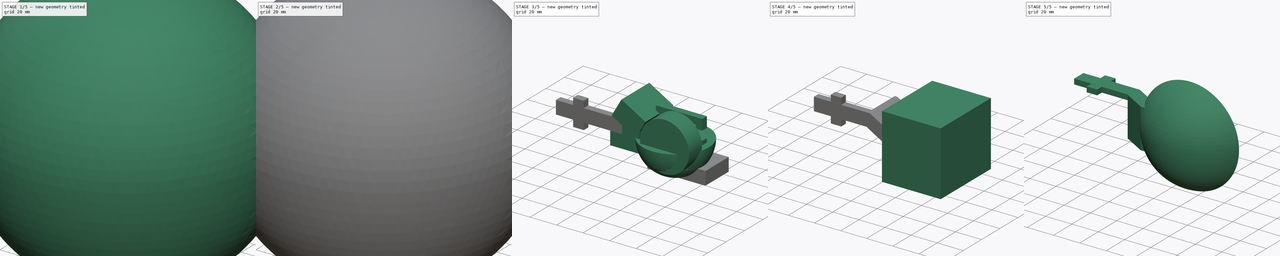
[diagram: build sequence overview — one tinted view per stage of 5, left to right]
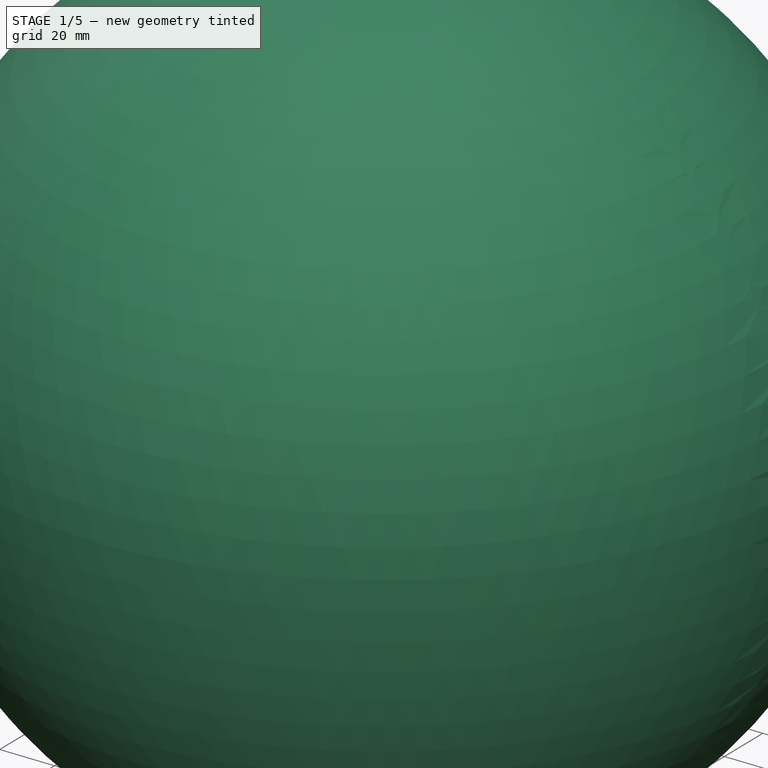
[diagram: stage 1 of 5 — iso view after this stage's code; geometry added in this stage tinted green]
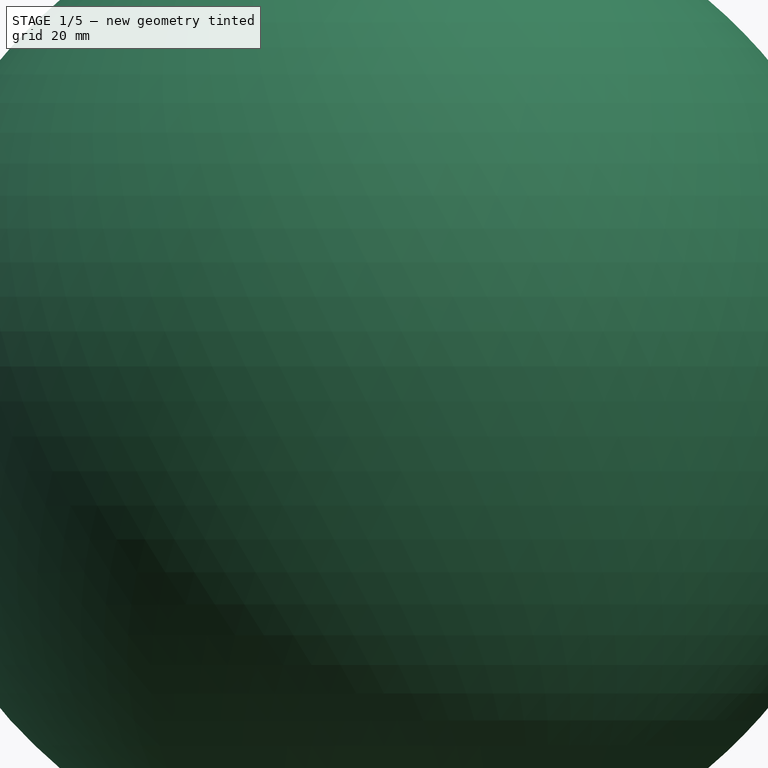
[diagram: stage 1 of 5 — front view after this stage's code; geometry added in this stage tinted green]
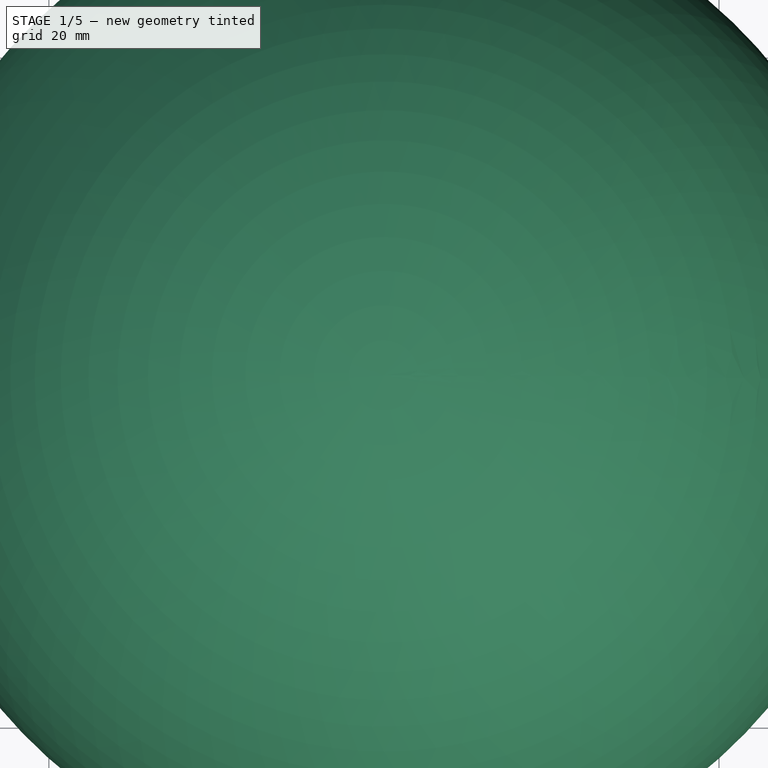
[diagram: stage 1 of 5 — top view after this stage's code; geometry added in this stage tinted green]
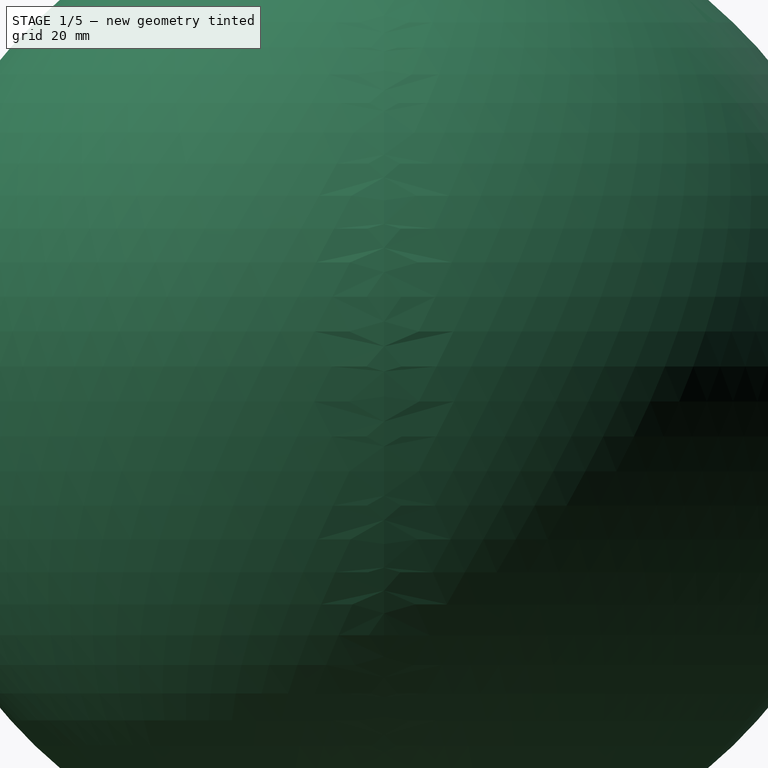
[diagram: stage 1 of 5 — right view after this stage's code; geometry added in this stage tinted green]
FCSTD DOCUMENT  (FreeCAD 0.20R29410 (Git))
Label: base_arduino
License: All rights reserved
LicenseURL: http://en.wikipedia.org/wiki/All_rights_reserved
objects: Part::Cut×18, Part::Box×16, Part::Extrusion×7, Sketcher::SketchObject×4, Part::MultiFuse×4, Part::Sphere×3, Part::Fuse×3, Part::Feature×3
note: 58 computed .brp shape members not serialized (recipe doc carries the construction recipe); baked Part::Feature solids carry a one-line shape summary decoded from their .brp

FEATURE [Sketcher::SketchObject] Sketch003
  FullyConstrained = true
  MapMode = 2
  sketch-geometry (6):
    g0: LineSegment StartX=0 StartY=0 StartZ=0 EndX=0 EndY=-5 EndZ=0
    g1: LineSegment StartX=0 StartY=-5 StartZ=0 EndX=50 EndY=-5 EndZ=0
    g2: LineSegment StartX=50 StartY=-5 StartZ=0 EndX=50 EndY=15 EndZ=0
    g3: LineSegment StartX=50 StartY=15 StartZ=0 EndX=45 EndY=15 EndZ=0
    g4: LineSegment StartX=45 StartY=15 StartZ=0 EndX=45 EndY=0 EndZ=0
    g5: LineSegment StartX=45 StartY=0 StartZ=0 EndX=0 EndY=0 EndZ=0
  constraints (17):
    c: Coincident(g-1,g0)
    c: PointOnObject(g0,g-2)
    c: Coincident(g0,g1)
    c: Horizontal(g1)
    c: Coincident(g1,g2)
    c: Vertical(g2)
    c: Coincident(g2,g3)
    c: Horizontal(g3)
    c: Coincident(g3,g4)
    c: PointOnObject(g4,g-1)
    c: Vertical(g4)
    c: Coincident(g4,g5)
    c: Coincident(g5,g0)
    c: Distance(g1) = 50
    c: Distance(g0) = 5
    c: Distance(g3) = 5
    c: Distance(g4) = 15
FEATURE [Part::Extrusion] Extrude007
  Base = -> Sketch003
  Dir = (0,0,1)
  DirMode = 2
  FaceMakerClass = Part::FaceMakerBullseye
  LengthFwd = 20
  LengthRev = 0
  Solid = true
  Symmetric = false
FEATURE [Part::Sphere] Sphere001  label="Esfera001"
  Angle1 = -90
  Angle2 = 90
  Angle3 = 360
  AttacherType = Attacher::AttachEngine3D
  Radius = 150
FEATURE [Part::Sphere] Sphere002  label="Esfera002"
  Angle1 = -90
  Angle2 = 90
  Angle3 = 360
  AttacherType = Attacher::AttachEngine3D
  Radius = 25
FEATURE [Part::Feature] circle1173
  Placement = pos=(80.8508,-13.1887,0) rot=(0,0,1;0rad)
  shape: bbox 0.8152 x 0.9368 x 1.995e-06 mm, 0 faces, 0 solids (baked)
FEATURE [Part::Extrusion] Extrude006
  Base = -> circle1173
  Dir = (0,0,1)
  DirMode = 2
  FaceMakerClass = Part::FaceMakerBullseye
  LengthFwd = 2
  LengthRev = 0
  Placement = pos=(22.5,0,0) rot=(0,0,1;0rad)
  Solid = true
  Symmetric = false
FEATURE [Part::Feature] circle1174
  Placement = pos=(80.8508,-10.0656,0) rot=(0,0,1;0rad)
  shape: bbox 0.8152 x 0.9368 x 1.995e-06 mm, 0 faces, 0 solids (baked)
FEATURE [Part::Extrusion] Extrude005
  Base = -> circle1174
  Dir = (0,0,1)
  DirMode = 2
  FaceMakerClass = Part::FaceMakerBullseye
  LengthFwd = 2
  LengthRev = 0
  Placement = pos=(22.5,0,0) rot=(0,0,1;0rad)
  Solid = true
  Symmetric = false
FEATURE [Part::Feature] path284
  shape: bbox 16.5 x 34.62 x 2e-07 mm, 0 faces, 0 solids (baked)
FEATURE [Part::Extrusion] Extrude004
  Base = -> path284
  Dir = (0,0,1)
  DirMode = 0
  FaceMakerClass = Part::FaceMakerBullseye
  LengthFwd = 1
  LengthRev = 0
  Solid = true
  Symmetric = false
FEATURE [Part::Fuse] Fusion002
  Base = -> Extrude004
  Tool = -> Extrude005
FEATURE [Part::Fuse] Fusion003
  Base = -> Fusion002
  Placement = pos=(46,2.9e-14,98) rot=(0.57735,0.57735,-0.57735;2.0944rad)
  Tool = -> Extrude006
FEATURE [Part::Cut] Cut005  label="agarre"
  Base = -> Extrude007
  Placement = pos=(-80,-10,20) rot=(0,0,1;0rad)
  Tool = -> Fusion003
FEATURE [Part::Box] Box015  label="Cubo015"
  AttacherType = Attacher::AttachEngine3D
  Height = 10
  Length = 44
  Placement = pos=(-18,-5,1) rot=(0,0,1;0rad)
  Width = 25
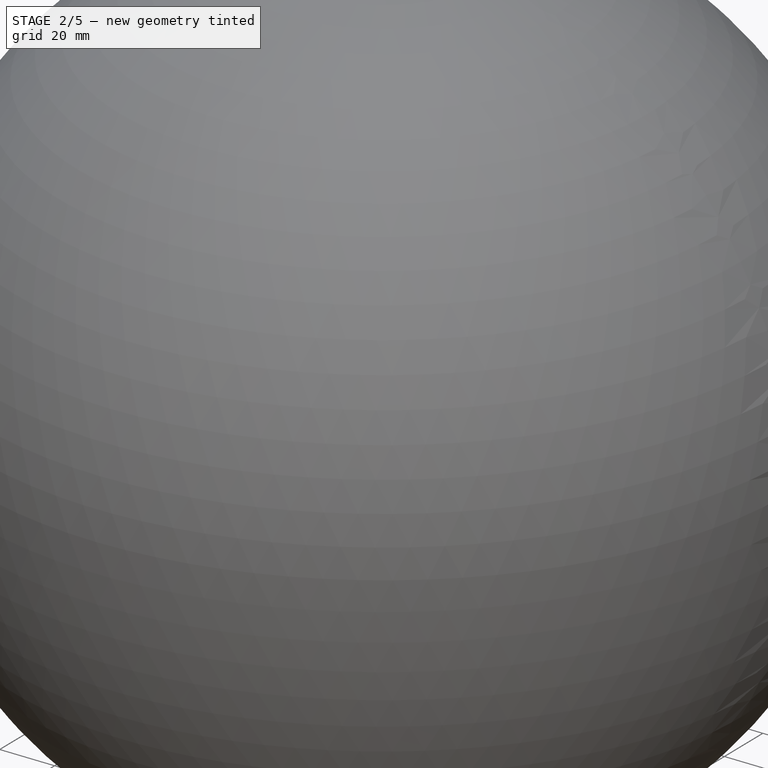
[diagram: stage 2 of 5 — iso view after this stage's code; geometry added in this stage tinted green]
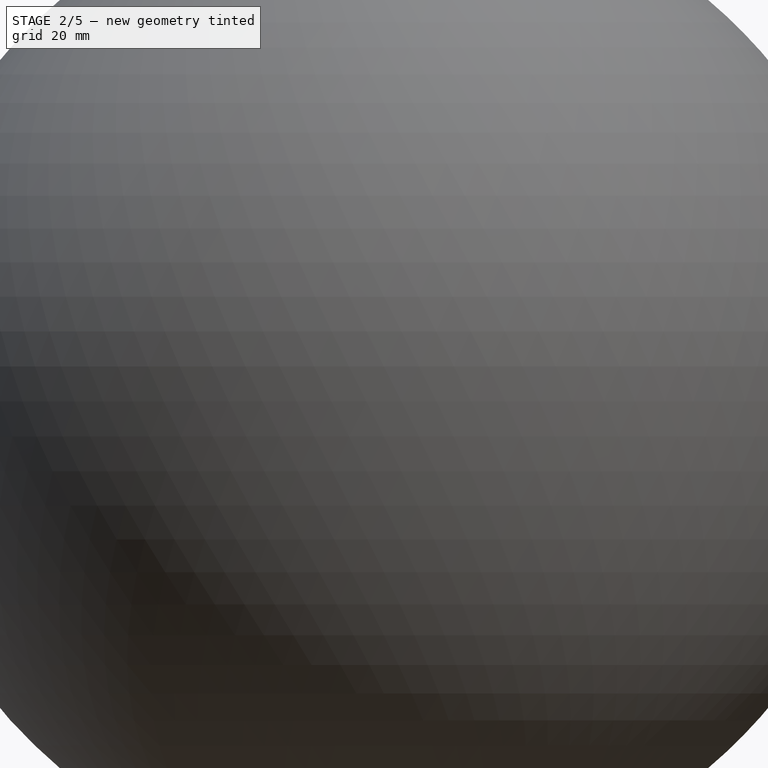
[diagram: stage 2 of 5 — front view after this stage's code; geometry added in this stage tinted green]
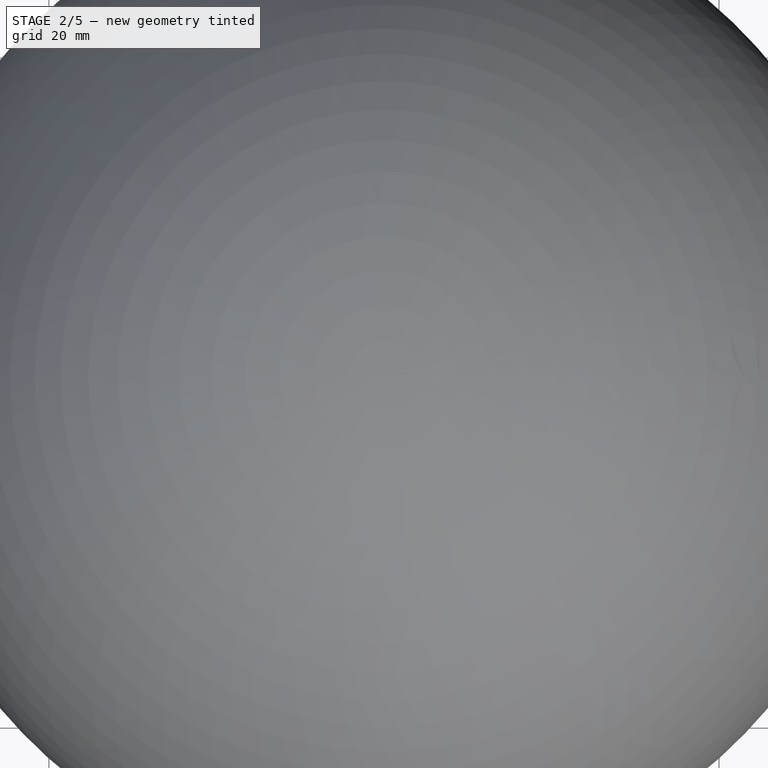
[diagram: stage 2 of 5 — top view after this stage's code; geometry added in this stage tinted green]
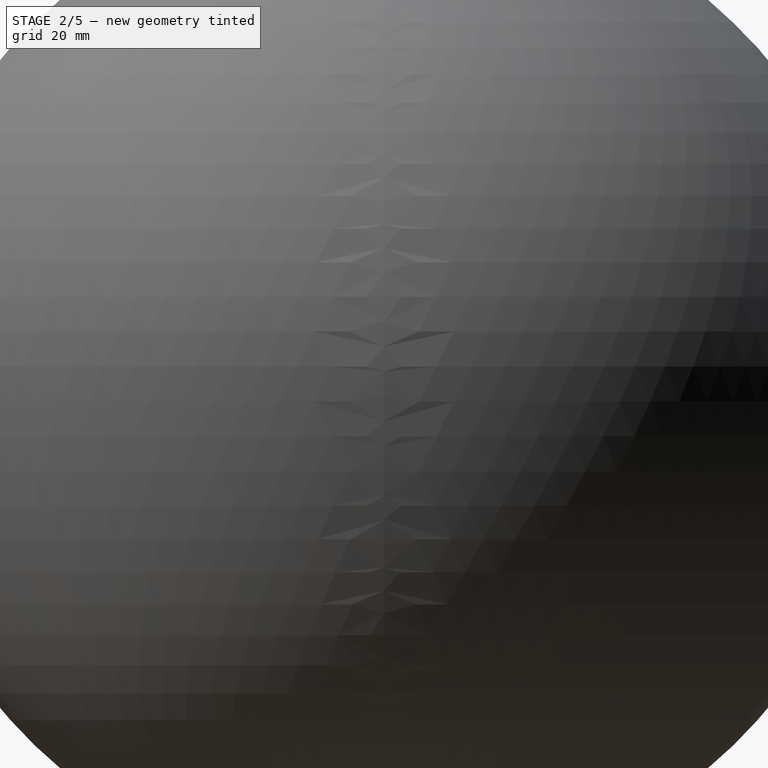
[diagram: stage 2 of 5 — right view after this stage's code; geometry added in this stage tinted green]
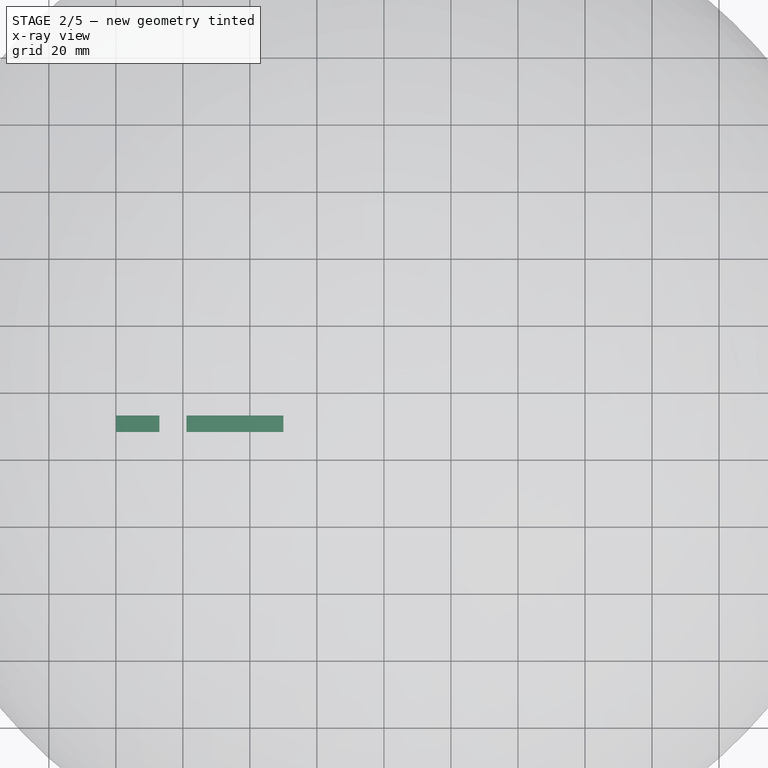
[diagram: stage 2 of 5 — x-ray composite at the top view; earlier geometry ghosted, this stage's added geometry solid]
FEATURE [Part::Box] Box001  label="Cubo001"
  AttacherType = Attacher::AttachEngine3D
  Height = 30
  Length = 30
  Placement = pos=(-44,-10,19) rot=(0,0,1;0rad)
  Width = 30
FEATURE [Part::Box] Box002  label="Cubo002"
  AttacherType = Attacher::AttachEngine3D
  Height = 10
  Length = 15
  Placement = pos=(-82,-17,15) rot=(0,0,1;0rad)
  Width = 10
FEATURE [Part::Box] Box005  label="Cubo005"
  AttacherType = Attacher::AttachEngine3D
  Height = 10
  Length = 15
  Placement = pos=(-82,-17,35) rot=(0,0,1;0rad)
  Width = 10
FEATURE [Part::Box] Box006  label="Cubo006"
  AttacherType = Attacher::AttachEngine3D
  Height = 10
  Length = 30
  Placement = pos=(-59,-18,15) rot=(0,0,1;0rad)
  Width = 10
FEATURE [Part::Box] Box007  label="Cubo007"
  AttacherType = Attacher::AttachEngine3D
  Height = 10
  Length = 30
  Placement = pos=(-59,-18,35) rot=(0,0,1;0rad)
  Width = 10
FEATURE [Part::Cut] Cut006
  Base = -> Cut005
  Tool = -> Box001
FEATURE [Part::Cut] Cut007
  Base = -> Cut006
  Tool = -> Box002
FEATURE [Part::Cut] Cut008
  Base = -> Cut007
  Tool = -> Box005
FEATURE [Part::Cut] Cut009
  Base = -> Cut008
  Tool = -> Box006
FEATURE [Part::Cut] Cut010
  Base = -> Cut009
  Tool = -> Box007
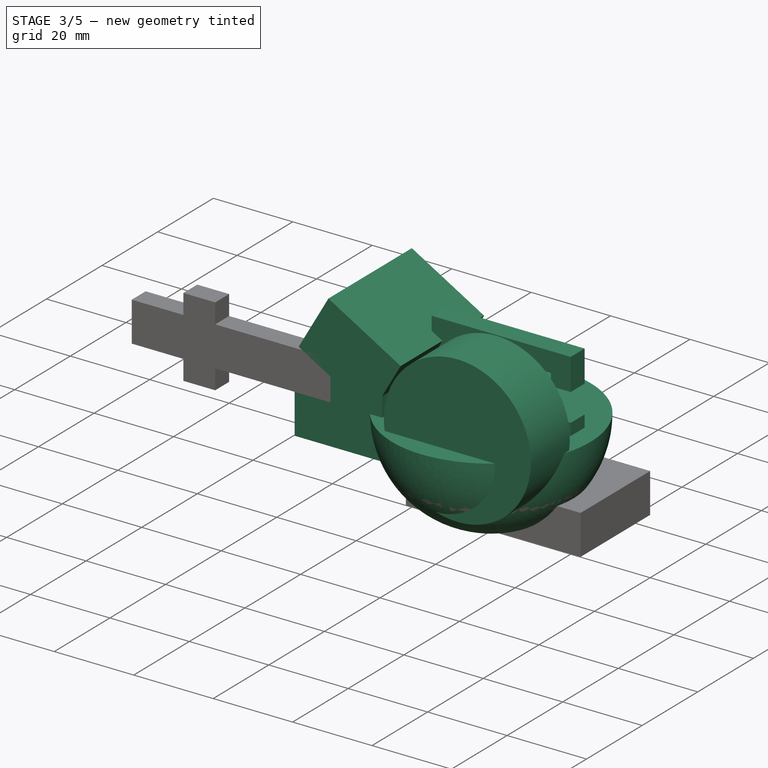
[diagram: stage 3 of 5 — iso view after this stage's code; geometry added in this stage tinted green]
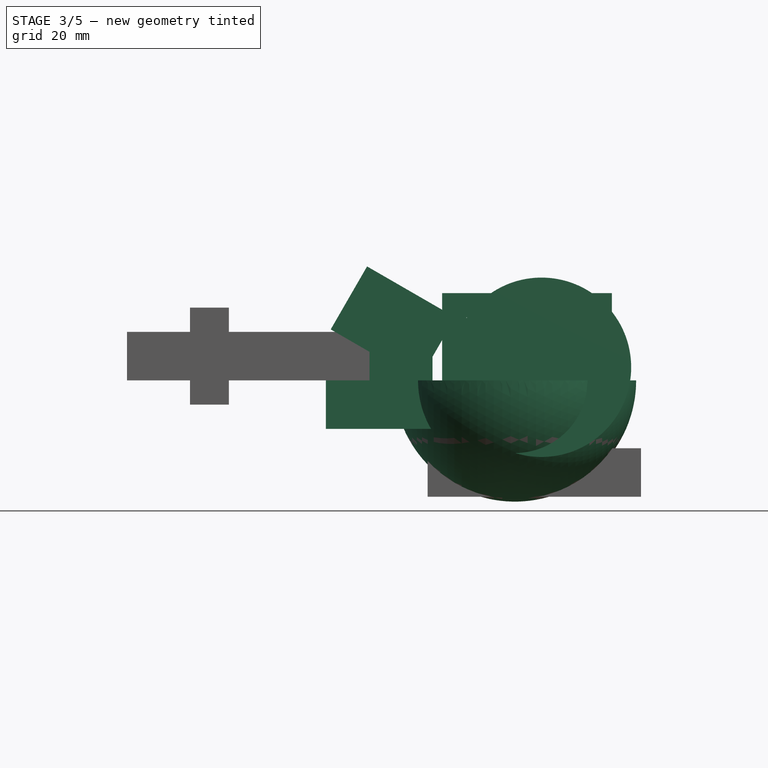
[diagram: stage 3 of 5 — front view after this stage's code; geometry added in this stage tinted green]
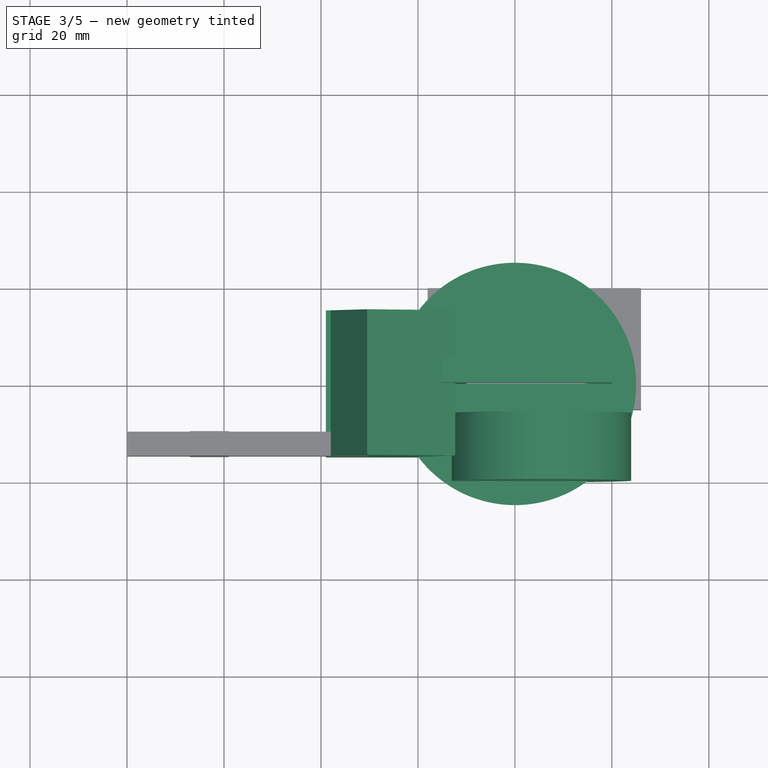
[diagram: stage 3 of 5 — top view after this stage's code; geometry added in this stage tinted green]
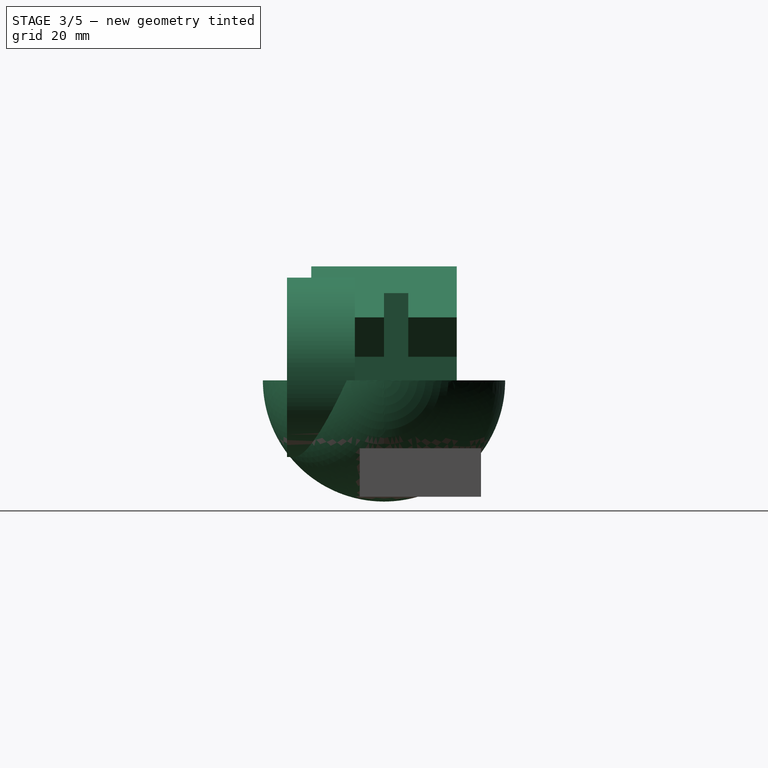
[diagram: stage 3 of 5 — right view after this stage's code; geometry added in this stage tinted green]
FEATURE [Part::Box] Box004  label="Cubo004"
  AttacherType = Attacher::AttachEngine3D
  Height = 320
  Length = 210
  Placement = pos=(0,-151,-150) rot=(0,0,1;0rad)
  Width = 320
FEATURE [Part::Box] Box008  label="Cubo008"
  AttacherType = Attacher::AttachEngine3D
  Height = 20
  Length = 22
  Placement = pos=(-39,-15,15) rot=(0,0,1;0rad)
  Width = 30
FEATURE [Part::Box] Box009  label="Cubo009"
  AttacherType = Attacher::AttachEngine3D
  Height = 15
  Length = 21
  Placement = pos=(-37.99,-15,35.52) rot=(0,1,0;0.523599rad)
  Width = 30
FEATURE [Sketcher::SketchObject] Sketch
  FullyConstrained = false
  sketch-geometry (1):
    g0: Circle CenterX=53.4782 CenterY=36.9583 CenterZ=0 NormalX=0 NormalY=0 NormalZ=1 AngleXU=0 Radius=18.5
  constraints (1):
    c: Radius(g0) = 18.5
FEATURE [Part::Extrusion] Extrude001  label="hueco"
  Base = -> Sketch
  Dir = (0,0,1)
  DirMode = 2
  FaceMakerClass = Part::FaceMakerBullseye
  LengthFwd = 14
  LengthRev = 0
  Placement = pos=(-48,-6,-9.25) rot=(1,0,0;1.5708rad)
  Solid = true
  Symmetric = false
FEATURE [Sketcher::SketchObject] Sketch001
  FullyConstrained = false
  Placement = pos=(0,0,0) rot=(1,0,0;1.5708rad)
  sketch-geometry (8):
    g0: LineSegment StartX=0 StartY=0 StartZ=0 EndX=25 EndY=0 EndZ=0
    g1: LineSegment StartX=0 StartY=0 StartZ=0 EndX=0 EndY=-13 EndZ=0
    g2: LineSegment StartX=25 StartY=0 StartZ=0 EndX=25 EndY=-3 EndZ=0
    g3: LineSegment StartX=0 StartY=-13 StartZ=0 EndX=-5 EndY=-13 EndZ=0
    g4: LineSegment StartX=25 StartY=-3 StartZ=0 EndX=30 EndY=-3 EndZ=0
    g5: LineSegment StartX=-5 StartY=-13 StartZ=0 EndX=-5 EndY=5 EndZ=0
    g6: LineSegment StartX=30 StartY=-3 StartZ=0 EndX=30 EndY=5 EndZ=0
    g7: LineSegment StartX=-5 StartY=5 StartZ=0 EndX=30 EndY=5 EndZ=0
  constraints (20):
    c: Coincident(g0,g-1)
    c: Horizontal(g0)
    c: Coincident(g1,g0)
    c: Vertical(g1)
    c: Coincident(g2,g0)
    c: Vertical(g2)
    c: DistanceY(g2,g2) = 3
    c: Coincident(g3,g1)
    c: Horizontal(g3)
    c: Coincident(g4,g2)
    c: Horizontal(g4)
    c: Coincident(g5,g3)
    c: Coincident(g6,g4)
    c: Vertical(g6)
    c: Vertical(g5)
    c: DistanceY(g5,g5) = 18
    c: DistanceY(g6,g6) = 8
    c: Coincident(g7,g5)
    c: Coincident(g7,g6)
    c: Horizontal(g7)
FEATURE [Part::Extrusion] Extrude
  Base = -> Sketch001
  Dir = (0,5,0)
  DirMode = 0
  FaceMakerClass = Part::FaceMakerBullseye
  LengthFwd = 5
  LengthRev = 0
  Solid = true
  Symmetric = false
FEATURE [Sketcher::SketchObject] Sketch002
  FullyConstrained = false
  Placement = pos=(0,0,0) rot=(1,0,0;1.5708rad)
  sketch-geometry (4):
    g0: LineSegment StartX=25 StartY=-13 StartZ=0 EndX=25 EndY=-10 EndZ=0
    g1: LineSegment StartX=30.0182 StartY=-13 StartZ=0 EndX=30.0182 EndY=-10 EndZ=0
    g2: LineSegment StartX=25 StartY=-10 StartZ=0 EndX=30.0182 EndY=-10 EndZ=0
    g3: LineSegment StartX=25 StartY=-13 StartZ=0 EndX=30.0182 EndY=-13 EndZ=0
  constraints (8):
    c: Vertical(g0)
    c: DistanceY(g0,g0) = 3
    c: Vertical(g1)
    c: DistanceY(g1,g1) = 3
    c: Coincident(g2,g0)
    c: Coincident(g2,g1)
    c: Coincident(g3,g0)
    c: Coincident(g3,g1)
FEATURE [Part::Extrusion] Extrude002
  Base = -> Sketch002
  Dir = (0,5,0)
  DirMode = 0
  FaceMakerClass = Part::FaceMakerBullseye
  LengthFwd = 5
  LengthRev = 0
  Solid = true
  Symmetric = false
FEATURE [Part::Cut] Cut002
  Base = -> Sphere001
  Tool = -> Box004
FEATURE [Part::Cut] Cut003
  Base = -> Sphere002
  Placement = pos=(10,0,-13) rot=(0,1,0;1.5708rad)
  Tool = -> Cut002
FEATURE [Part::MultiFuse] Fusion
  Shapes = -> [Extrude,Cut003]
FEATURE [Part::Fuse] Fusion001
  Base = -> Fusion
  Placement = pos=(-10,0,38) rot=(0,0,1;0rad)
  Tool = -> Extrude002
FEATURE [Part::MultiFuse] Fusion004
  Shapes = -> [Cut010,Box008]
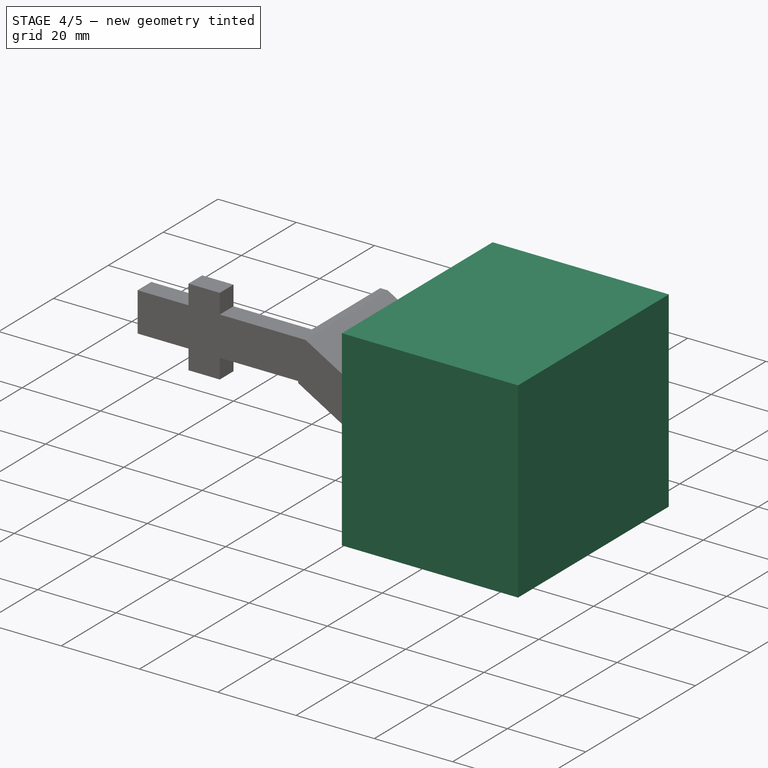
[diagram: stage 4 of 5 — iso view after this stage's code; geometry added in this stage tinted green]
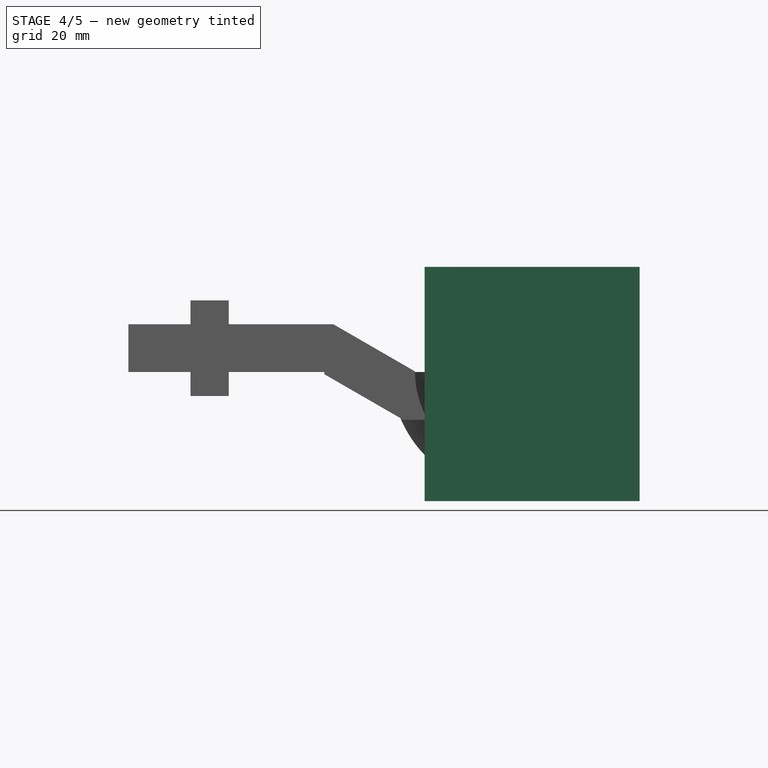
[diagram: stage 4 of 5 — front view after this stage's code; geometry added in this stage tinted green]
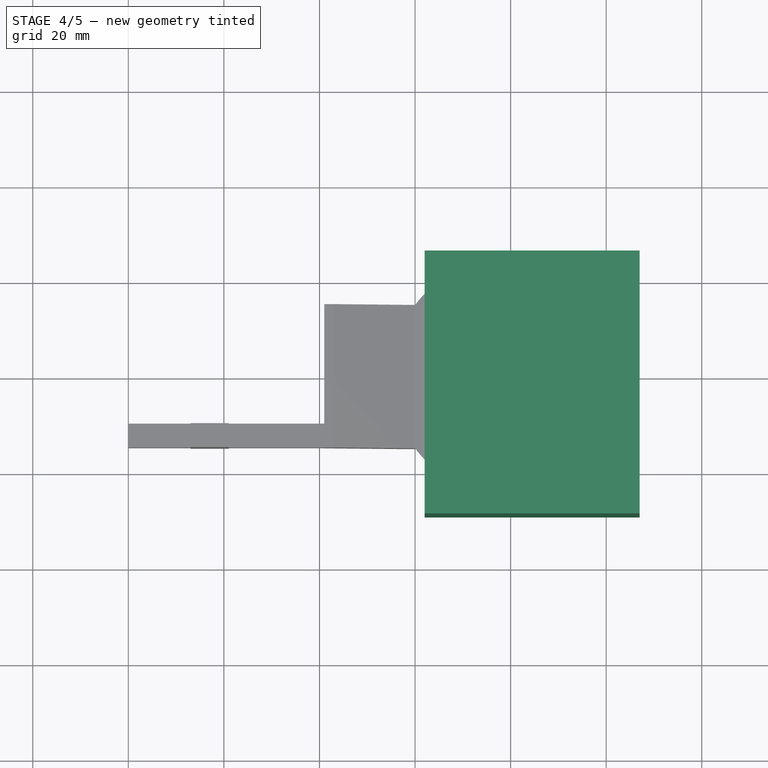
[diagram: stage 4 of 5 — top view after this stage's code; geometry added in this stage tinted green]
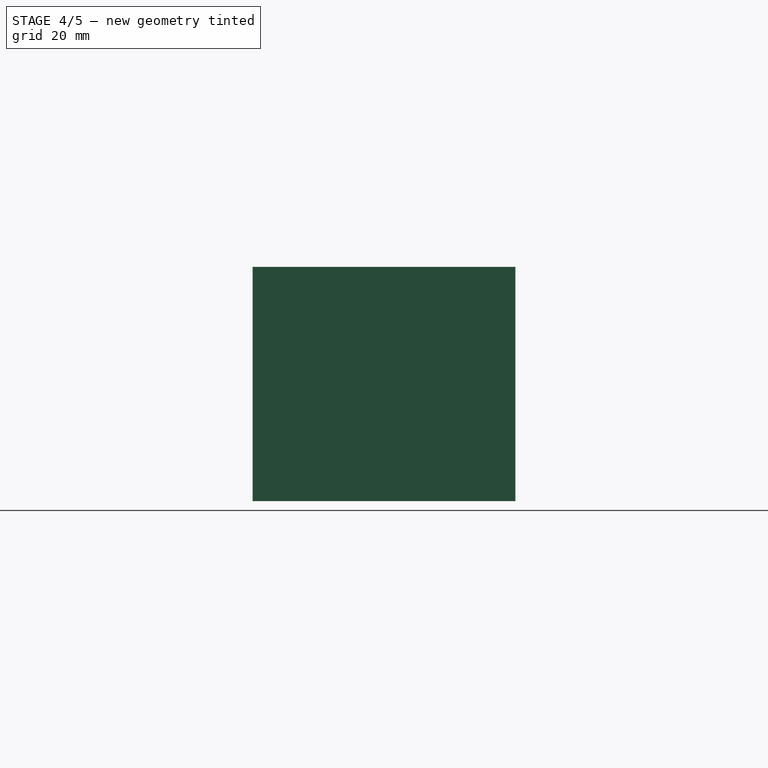
[diagram: stage 4 of 5 — right view after this stage's code; geometry added in this stage tinted green]
FEATURE [Part::Box] Box010  label="Cubo010"
  AttacherType = Attacher::AttachEngine3D
  Height = 15
  Length = 21
  Placement = pos=(-46.5929,-15,11.6194) rot=(0,1,0;0.523599rad)
  Width = 30
FEATURE [Part::Box] Box011  label="Cubo011"
  AttacherType = Attacher::AttachEngine3D
  Height = 10
  Length = 10
  Placement = pos=(-20,-17,25) rot=(0,0,1;0rad)
  Width = 40
FEATURE [Part::Box] Box012  label="Cubo012"
  AttacherType = Attacher::AttachEngine3D
  Height = 48
  Length = 12
  Placement = pos=(2,0,0) rot=(0,0,1;0rad)
  Width = 10
FEATURE [Part::Box] Box013  label="Cubo013"
  AttacherType = Attacher::AttachEngine3D
  Height = 49
  Length = 45
  Placement = pos=(-18,-29,-2) rot=(0,0,1;0rad)
  Width = 55
FEATURE [Part::Cut] Cut004  label="base"
  Base = -> Fusion001
  Tool = -> Extrude001
FEATURE [Part::Cut] Cut011
  Base = -> Fusion004
  Tool = -> Box009
FEATURE [Part::Cut] Cut012
  Base = -> Cut011
  Tool = -> Box010
FEATURE [Part::Cut] Cut013  label="agarre001"
  Base = -> Cut012
  Tool = -> Box011
FEATURE [Part::MultiFuse] Fusion005
  Shapes = -> [Cut013,Cut004]
FEATURE [Part::Cut] Cut014
  Base = -> Fusion005
  Tool = -> Box012
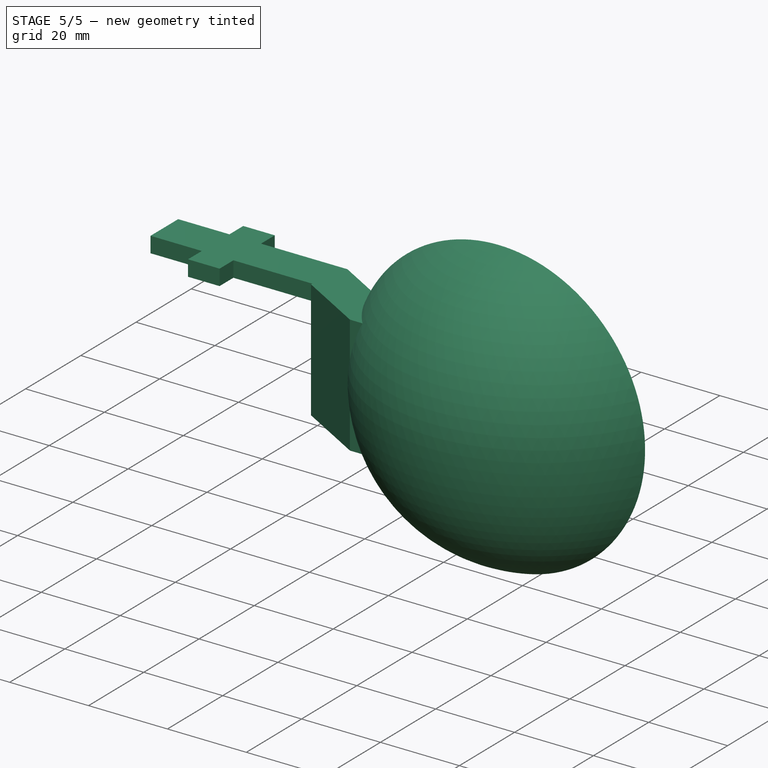
[diagram: stage 5 of 5 — iso view after this stage's code; geometry added in this stage tinted green]
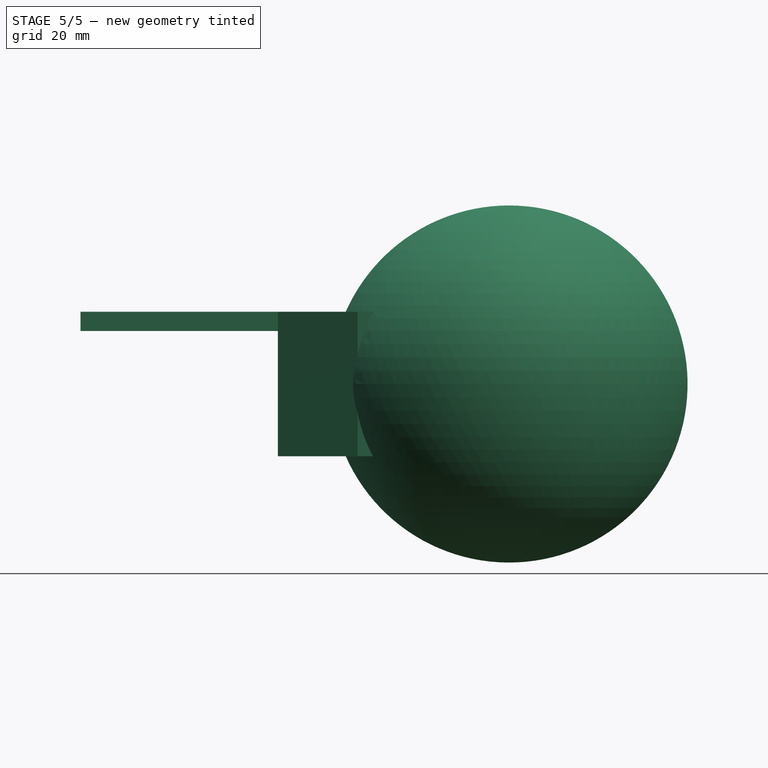
[diagram: stage 5 of 5 — front view after this stage's code; geometry added in this stage tinted green]
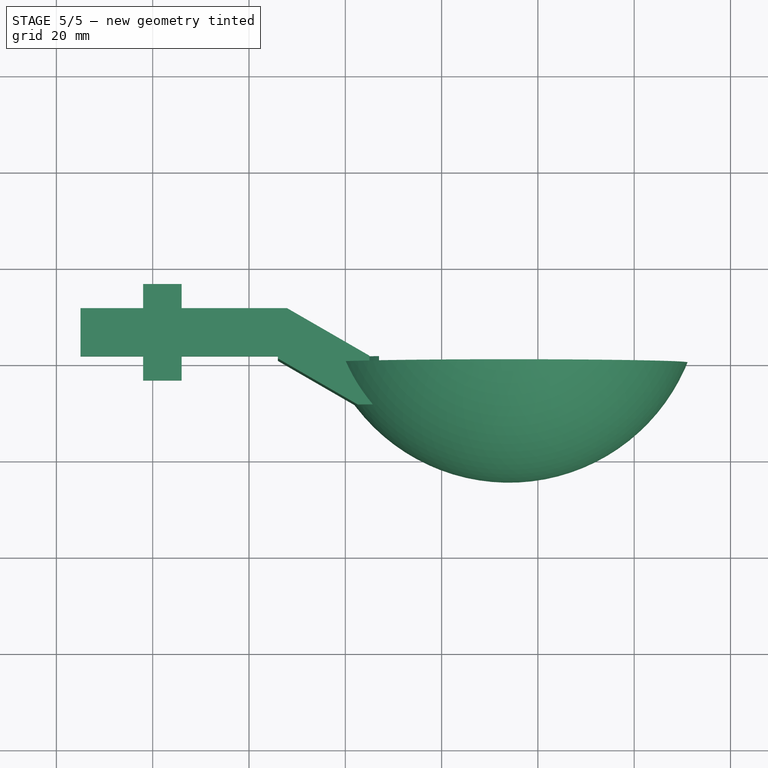
[diagram: stage 5 of 5 — top view after this stage's code; geometry added in this stage tinted green]
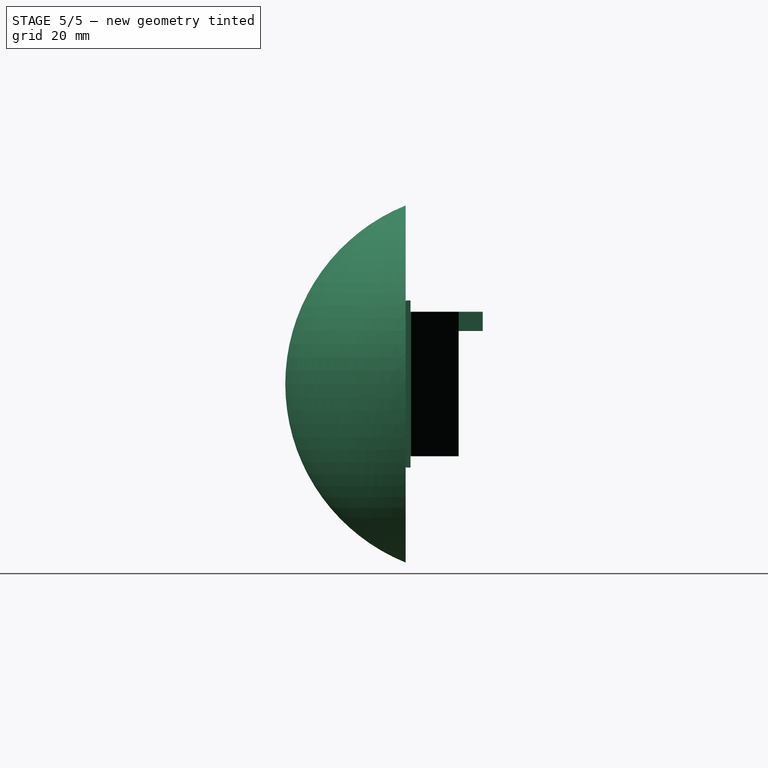
[diagram: stage 5 of 5 — right view after this stage's code; geometry added in this stage tinted green]
FEATURE [Part::Sphere] Sphere  label="Esfera"
  Angle1 = -90
  Angle2 = 90
  Angle3 = 360
  AttacherType = Attacher::AttachEngine3D
  Placement = pos=(74,0,0) rot=(0,0,1;0rad)
  Radius = 40
FEATURE [Part::Box] Box  label="Cubo"
  AttacherType = Attacher::AttachEngine3D
  Height = 200
  Length = 200
  Placement = pos=(-32,0,-46) rot=(0,0,1;0rad)
  Width = 200
FEATURE [Part::Cut] Cut
  Base = -> Sphere
  Placement = pos=(0,15,0) rot=(0,0,1;0rad)
  Tool = -> Box
FEATURE [Part::Box] Box003  label="Cubo003"
  AttacherType = Attacher::AttachEngine3D
  Height = 210
  Length = 200
  Placement = pos=(-35,0,-41) rot=(0,0,1;0rad)
  Width = 25
FEATURE [Part::Cut] Cut001
  Base = -> Cut
  Tool = -> Box003
FEATURE [Part::Box] Box014  label="Cubo014"
  AttacherType = Attacher::AttachEngine3D
  Height = 10
  Length = 10
  Placement = pos=(-25,-20,5) rot=(0,0,1;0rad)
  Width = 36
FEATURE [Part::Cut] Cut015
  Base = -> Cut014
  Tool = -> Box013
FEATURE [Part::Cut] Cut016
  Base = -> Cut015
  Placement = pos=(65,-24,5e-15) rot=(-1,0,0;1.5708rad)
  Tool = -> Box014
FEATURE [Part::MultiFuse] Fusion012
  Shapes = -> [Cut001,Cut016]
FEATURE [Part::Cut] Cut017
  Base = -> Fusion012
  Tool = -> Box015
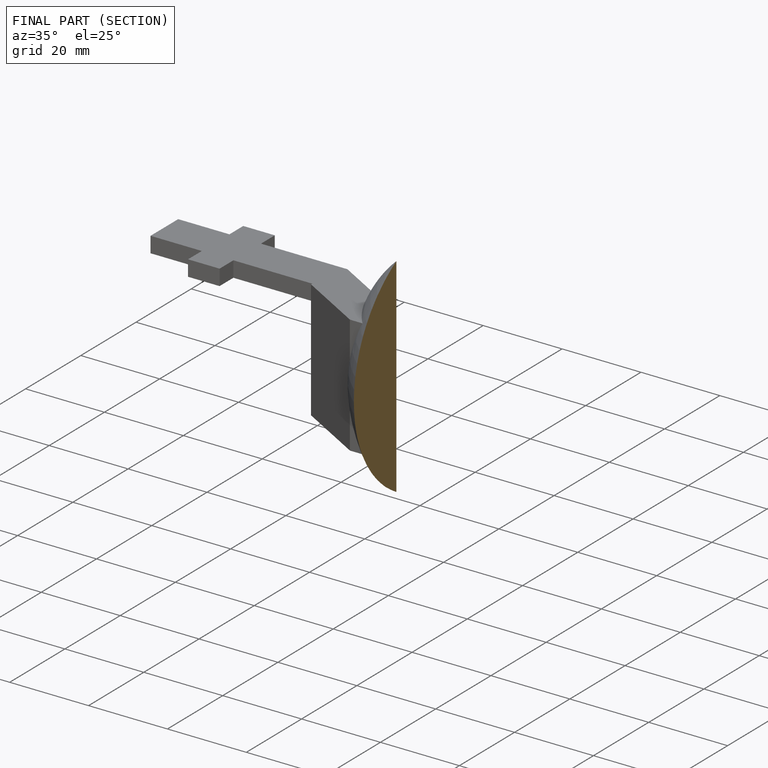
[diagram: finished part — half-section view (interior)]
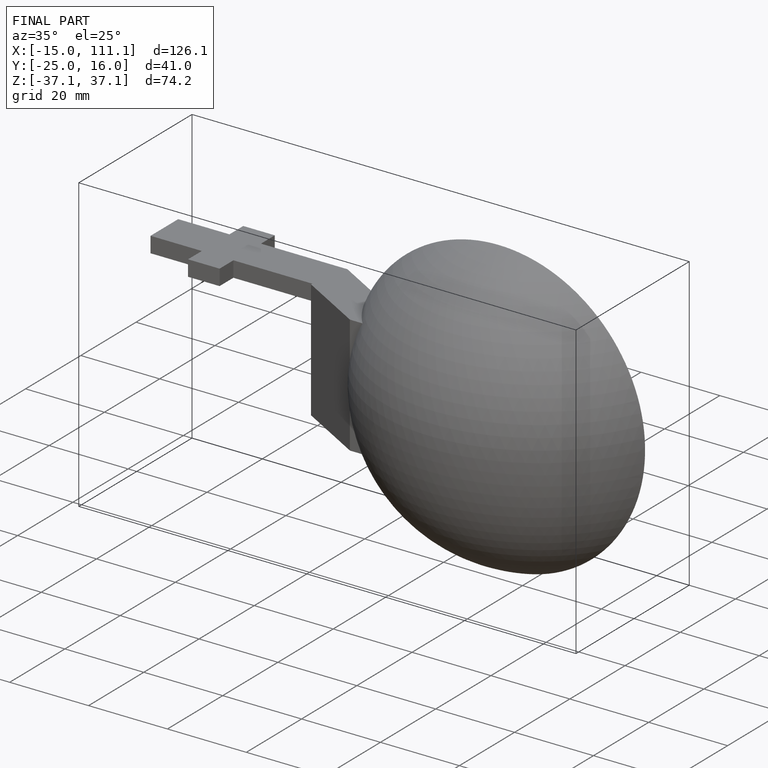
[diagram: finished part — iso view with bounding-box wireframe]
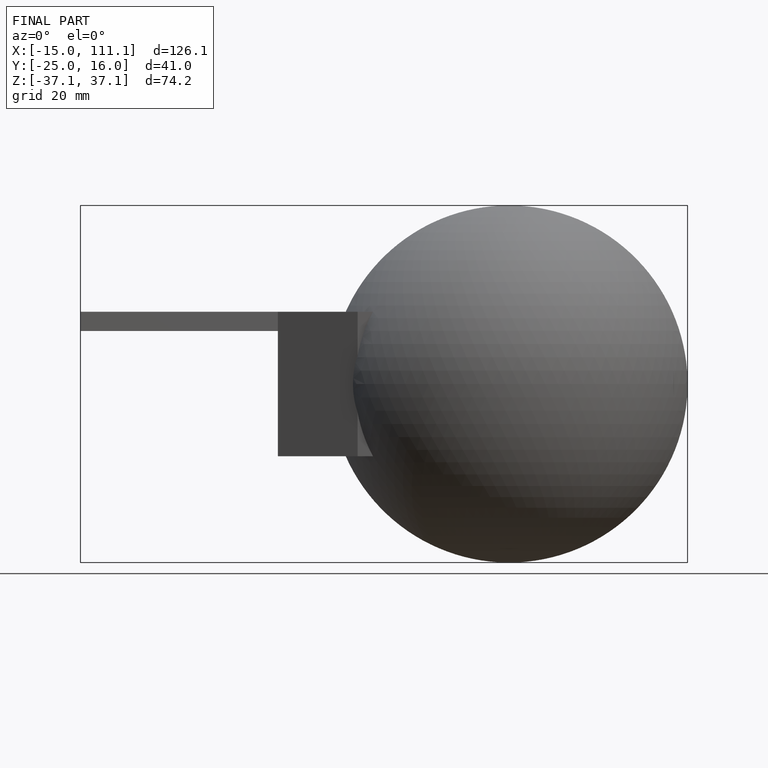
[diagram: finished part — front view with bounding-box wireframe]
